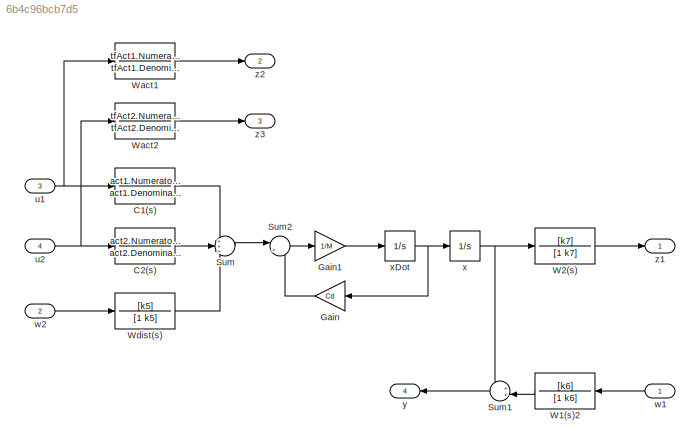
MODEL slx_6b4c96bcb7d5
KIND model
CONFIG AbsTol = auto
CONFIG EnableMultiTasking = off
CONFIG FixedStep = auto
CONFIG MaxStep = auto
CONFIG MinStep = auto
CONFIG RelTol = 1e-3
CONFIG SampleTimeConstraint = Unconstrained
CONFIG SolverName = VariableStepAuto
CONFIG StartTime = 0.0
CONFIG StopTime = 10.0
BLOCK [TransferFcn] C1(s)
  Denominator = act1.Denominator{1}
  Numerator = act1.Numerator{1}
BLOCK [TransferFcn] C2(s)
  Denominator = act2.Denominator{1}
  Numerator = act2.Numerator{1}
BLOCK [Gain] Gain
  Gain = Cd
BLOCK [Gain] Gain1
  Gain = 1/M
BLOCK [Sum] Sum
  Inputs = +++
  Ports = [3, 1]
BLOCK [Sum] Sum1
  Inputs = ++|
  NameLocation = top
  Ports = [2, 1]
BLOCK [Sum] Sum2
  Inputs = |+-
  Ports = [2, 1]
BLOCK [TransferFcn] W1(s)2
  Commented = through
  Denominator = [1 k6]
  Numerator = [k6]
BLOCK [TransferFcn] W2(s)
  Commented = through
  Denominator = [1 k7]
  Numerator = [k7]
BLOCK [TransferFcn] Wact1
  Denominator = tfAct1.Denominator{1}
  Numerator = tfAct1.Numerator{1}
BLOCK [TransferFcn] Wact2
  Denominator = tfAct2.Denominator{1}
  Numerator = tfAct2.Numerator{1}
BLOCK [TransferFcn] Wdist(s)
  Commented = through
  Denominator = [1 k5]
  Numerator = [k5]
BLOCK [Inport] u1
  Port = 3
BLOCK [Inport] u2
  Port = 4
BLOCK [Inport] w1
BLOCK [Inport] w2
  Port = 2
BLOCK [Integrator] x
  Ports = [1, 1]
BLOCK [Integrator] xDot
  Ports = [1, 1]
BLOCK [Outport] y
  Port = 4
  VectorParamsAs1DForOutWhenUnconnected = off
BLOCK [Outport] z1
  VectorParamsAs1DForOutWhenUnconnected = off
BLOCK [Outport] z2
  Port = 2
  VectorParamsAs1DForOutWhenUnconnected = off
BLOCK [Outport] z3
  Port = 3
  VectorParamsAs1DForOutWhenUnconnected = off
LINE C1(s):1 -> Sum:1
LINE C2(s):1 -> Sum:2
LINE Gain1:1 -> xDot:1
LINE Gain:1 -> Sum2:2
LINE Sum1:1 -> y:1
LINE Sum2:1 -> Gain1:1
LINE Sum:1 -> Sum2:1
LINE W1(s)2:1 -> Sum1:2
LINE W2(s):1 -> z1:1
LINE Wact1:1 -> z2:1
LINE Wact2:1 -> z3:1
LINE Wdist(s):1 -> Sum:3
NET u1:1 -> C1(s):1, Wact1:1
NET u2:1 -> C2(s):1, Wact2:1
LINE w1:1 -> W1(s)2:1
LINE w2:1 -> Wdist(s):1
NET x:1 -> Sum1:1, W2(s):1
NET xDot:1 -> Gain:1, x:1
note: NET lines group one-source signal fan-out (src -> all destinations, sorted); 1:1 wires keep LINE
